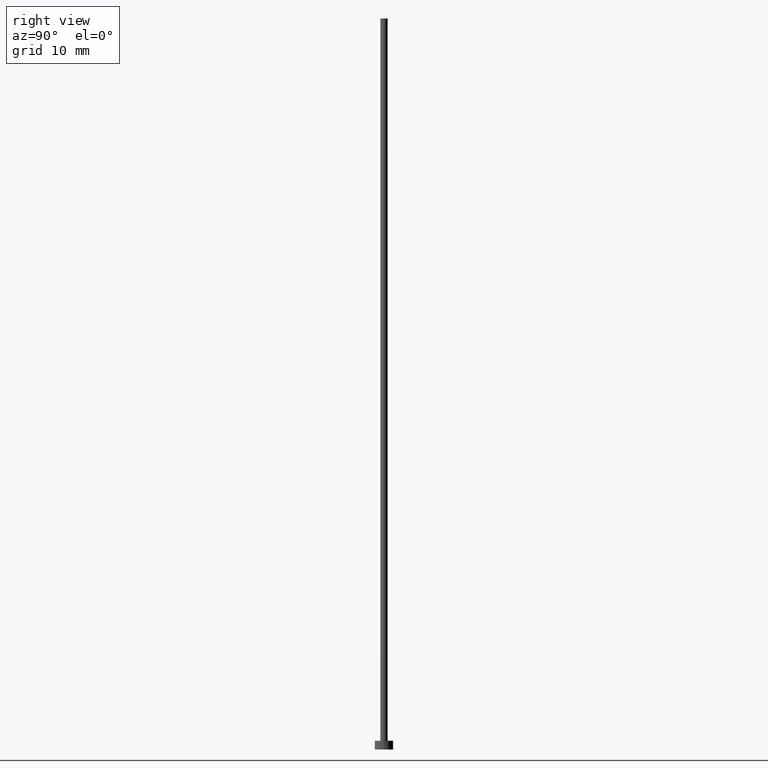
[diagram: clean part render]
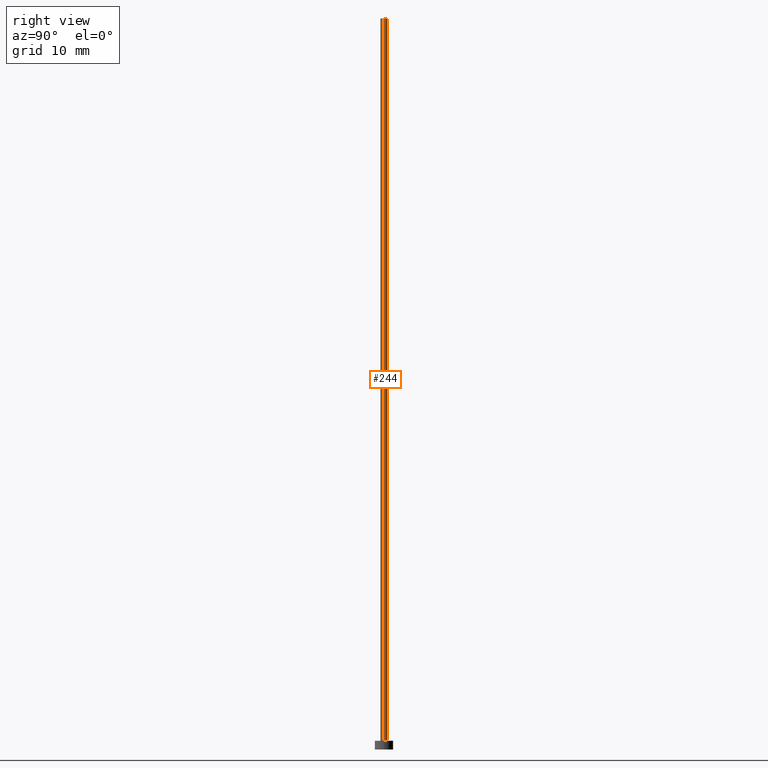
[diagram: same view with one face highlighted and labeled with its STEP entity id]
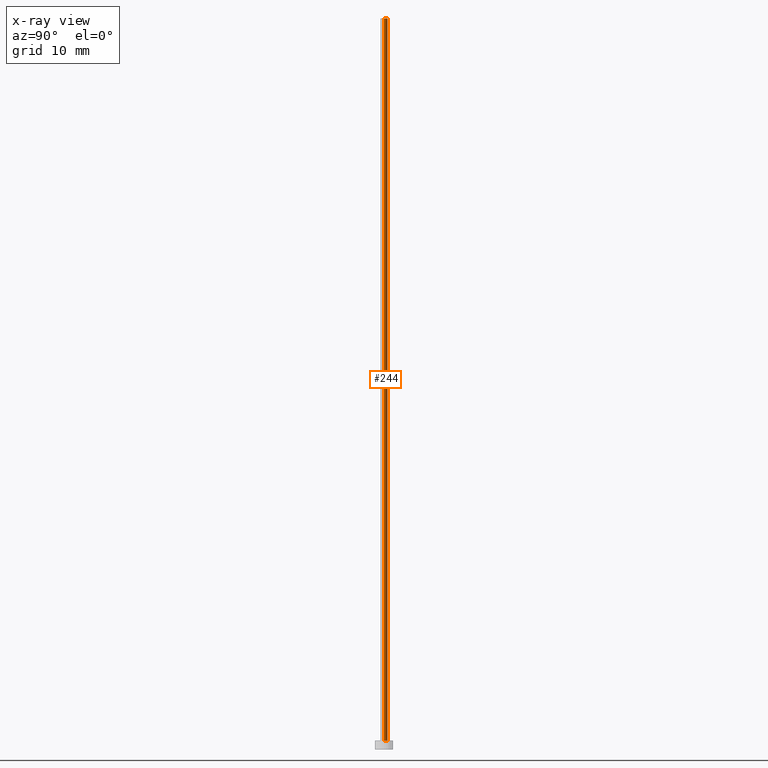
[diagram: x-ray of the same camera — body ghosted, the highlighted face saturated]
A machine part, right view. The second image highlights one B-rep face of the part: STEP entity #244.
The next image is the same camera in x-ray: the body ghosted, the highlighted face saturated — about 0% of this face is hidden behind the body in this view.
In plain terms, the highlighted cylindrical surface (edge-blend (fillet) strip) has radius 0.5 mm, axis along (-0, -0, -1).
Its self-contained STEP definition (entity closure, byte-faithful):
#5 = ORIENTED_EDGE ( 'NONE', *, *, #85, .F. ) ;
#6 = ORIENTED_EDGE ( 'NONE', *, *, #182, .T. ) ;
#11 = DIRECTION ( 'NONE',  ( 1.000000000000000000, 0.000000000000000000, 0.000000000000000000 ) ) ;
#31 = VECTOR ( 'NONE', #133, 1000.000000000000000 ) ;
#33 = DIRECTION ( 'NONE',  ( 0.000000000000000000, 0.000000000000000000, 1.000000000000000000 ) ) ;
#41 = FACE_OUTER_BOUND ( 'NONE', #144, .T. ) ;
#44 = ORIENTED_EDGE ( 'NONE', *, *, #174, .F. ) ;
#67 = ORIENTED_EDGE ( 'NONE', *, *, #97, .T. ) ;
#69 = AXIS2_PLACEMENT_3D ( 'NONE', #166, #76, #11 ) ;
#70 = CARTESIAN_POINT ( 'NONE',  ( 0.000000000000000000, 0.000000000000000000, 100.0000000000000000 ) ) ;
#76 = DIRECTION ( 'NONE',  ( 0.000000000000000000, 0.000000000000000000, 1.000000000000000000 ) ) ;
#85 = EDGE_CURVE ( 'NONE', #183, #185, #254, .T. ) ;
#91 = CARTESIAN_POINT ( 'NONE',  ( -0.5000000000000000000, 0.000000000000000000, 100.0000000000000000 ) ) ;
#97 = EDGE_CURVE ( 'NONE', #239, #204, #112, .T. ) ;
#98 = DIRECTION ( 'NONE',  ( -0.000000000000000000, -0.000000000000000000, -1.000000000000000000 ) ) ;
#102 = AXIS2_PLACEMENT_3D ( 'NONE', #213, #98, #253 ) ;
#110 = LINE ( 'NONE', #188, #143 ) ;
#112 = CIRCLE ( 'NONE', #69, 0.5000000000000000000 ) ;
#114 = LINE ( 'NONE', #155, #31 ) ;
#132 = CARTESIAN_POINT ( 'NONE',  ( 0.5000000000000000000, 6.123233995736766036E-17, 100.0000000000000000 ) ) ;
#133 = DIRECTION ( 'NONE',  ( -0.000000000000000000, -0.000000000000000000, -1.000000000000000000 ) ) ;
#143 = VECTOR ( 'NONE', #186, 1000.000000000000000 ) ;
#144 = EDGE_LOOP ( 'NONE', ( #5, #6, #67, #44 ) ) ;
#148 = AXIS2_PLACEMENT_3D ( 'NONE', #70, #33, #227 ) ;
#155 = CARTESIAN_POINT ( 'NONE',  ( 0.5000000000000000000, 6.123233995736766036E-17, 100.0000000000000000 ) ) ;
#160 = CARTESIAN_POINT ( 'NONE',  ( 0.5000000000000000000, 6.123233995736766036E-17, 1.199999999999999956 ) ) ;
#166 = CARTESIAN_POINT ( 'NONE',  ( 0.000000000000000000, 0.000000000000000000, 1.199999999999999956 ) ) ;
#170 = CARTESIAN_POINT ( 'NONE',  ( -0.5000000000000000000, 0.000000000000000000, 1.199999999999999956 ) ) ;
#174 = EDGE_CURVE ( 'NONE', #185, #204, #110, .T. ) ;
#182 = EDGE_CURVE ( 'NONE', #183, #239, #114, .T. ) ;
#183 = VERTEX_POINT ( 'NONE', #132 ) ;
#185 = VERTEX_POINT ( 'NONE', #91 ) ;
#186 = DIRECTION ( 'NONE',  ( -0.000000000000000000, -0.000000000000000000, -1.000000000000000000 ) ) ;
#188 = CARTESIAN_POINT ( 'NONE',  ( -0.5000000000000000000, 0.000000000000000000, 100.0000000000000000 ) ) ;
#204 = VERTEX_POINT ( 'NONE', #170 ) ;
#213 = CARTESIAN_POINT ( 'NONE',  ( 0.000000000000000000, 0.000000000000000000, 100.0000000000000000 ) ) ;
#227 = DIRECTION ( 'NONE',  ( 1.000000000000000000, 0.000000000000000000, 0.000000000000000000 ) ) ;
#239 = VERTEX_POINT ( 'NONE', #160 ) ;
#244 = ADVANCED_FACE ( 'NONE', ( #41 ), #251, .T. ) ;
#251 = CYLINDRICAL_SURFACE ( 'NONE', #102, 0.5000000000000000000 ) ;
#253 = DIRECTION ( 'NONE',  ( -1.000000000000000000, 0.000000000000000000, 0.000000000000000000 ) ) ;
#254 = CIRCLE ( 'NONE', #148, 0.5000000000000000000 ) ;